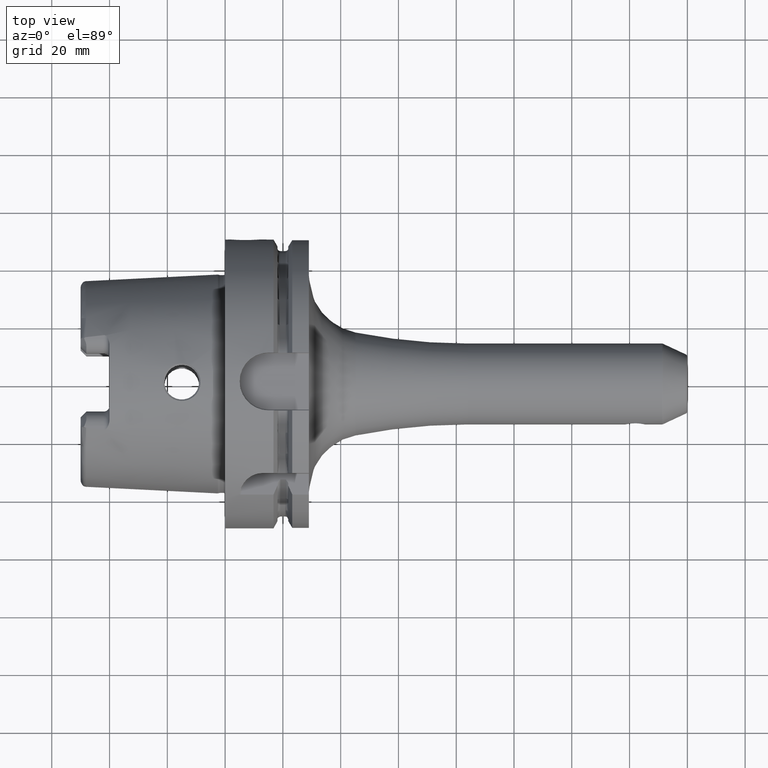
[diagram: clean part render]
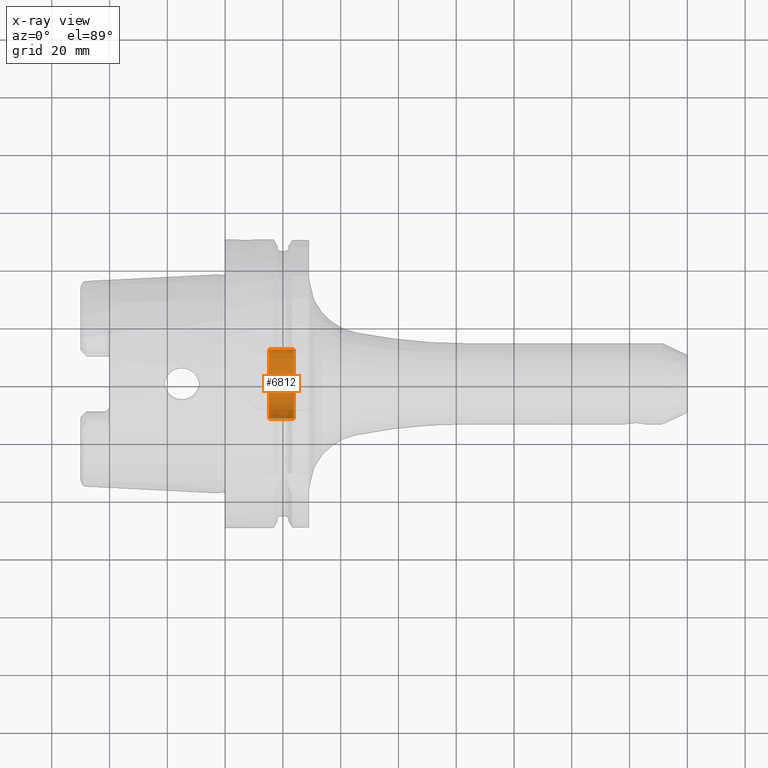
[diagram: x-ray — body ghosted, one internal face saturated and labeled with its STEP entity id]
A machine part, top view, then the same camera in x-ray: the body is ghosted and one INTERNAL B-rep face — a face not visible from any outside direction — is saturated and labeled: STEP entity #6812.
In plain terms, the highlighted cylindrical surface (edge-blend (fillet) strip) has radius 12 mm, axis along (1, 0, 0).
Its self-contained STEP definition (entity closure, byte-faithful):
#6725=CARTESIAN_POINT('',(1.51625E1,0.E0,0.E0));
#6726=DIRECTION('',(1.E0,0.E0,0.E0));
#6727=DIRECTION('',(0.E0,-1.E0,0.E0));
#6728=AXIS2_PLACEMENT_3D('',#6725,#6726,#6727);
#6730=CARTESIAN_POINT('',(2.385262794416E1,0.E0,0.E0));
#6731=DIRECTION('',(-1.E0,0.E0,0.E0));
#6732=DIRECTION('',(0.E0,1.E0,0.E0));
#6733=AXIS2_PLACEMENT_3D('',#6730,#6731,#6732);
#6750=DIRECTION('',(-1.E0,0.E0,0.E0));
#6751=VECTOR('',#6750,8.690127944163E0);
#6752=CARTESIAN_POINT('',(2.385262794416E1,-1.2E1,0.E0));
#6753=LINE('',#6752,#6751);
#6759=DIRECTION('',(-1.E0,0.E0,0.E0));
#6760=VECTOR('',#6759,8.690127944163E0);
#6761=CARTESIAN_POINT('',(2.385262794416E1,1.2E1,0.E0));
#6762=LINE('',#6761,#6760);
#6785=CARTESIAN_POINT('',(1.51625E1,-1.2E1,0.E0));
#6786=CARTESIAN_POINT('',(1.51625E1,1.2E1,0.E0));
#6787=VERTEX_POINT('',#6785);
#6788=VERTEX_POINT('',#6786);
#6789=CARTESIAN_POINT('',(2.385262794416E1,-1.2E1,0.E0));
#6790=CARTESIAN_POINT('',(2.385262794416E1,1.2E1,0.E0));
#6791=VERTEX_POINT('',#6789);
#6792=VERTEX_POINT('',#6790);
#6797=CARTESIAN_POINT('',(-4.847666062263E0,0.E0,0.E0));
#6798=DIRECTION('',(1.E0,0.E0,0.E0));
#6799=DIRECTION('',(0.E0,-1.E0,0.E0));
#6800=AXIS2_PLACEMENT_3D('',#6797,#6798,#6799);
#6801=CYLINDRICAL_SURFACE('',#6800,1.2E1);
#6803=ORIENTED_EDGE('',*,*,#6802,.T.);
#6805=ORIENTED_EDGE('',*,*,#6804,.F.);
#6807=ORIENTED_EDGE('',*,*,#6806,.T.);
#6809=ORIENTED_EDGE('',*,*,#6808,.T.);
#6810=EDGE_LOOP('',(#6803,#6805,#6807,#6809));
#6811=FACE_OUTER_BOUND('',#6810,.F.);
#6812=ADVANCED_FACE('',(#6811),#6801,.F.);
#6729=CIRCLE('',#6728,1.2E1);
#6734=CIRCLE('',#6733,1.2E1);
#6802=EDGE_CURVE('',#6787,#6788,#6729,.T.);
#6804=EDGE_CURVE('',#6792,#6788,#6762,.T.);
#6806=EDGE_CURVE('',#6792,#6791,#6734,.T.);
#6808=EDGE_CURVE('',#6791,#6787,#6753,.T.);